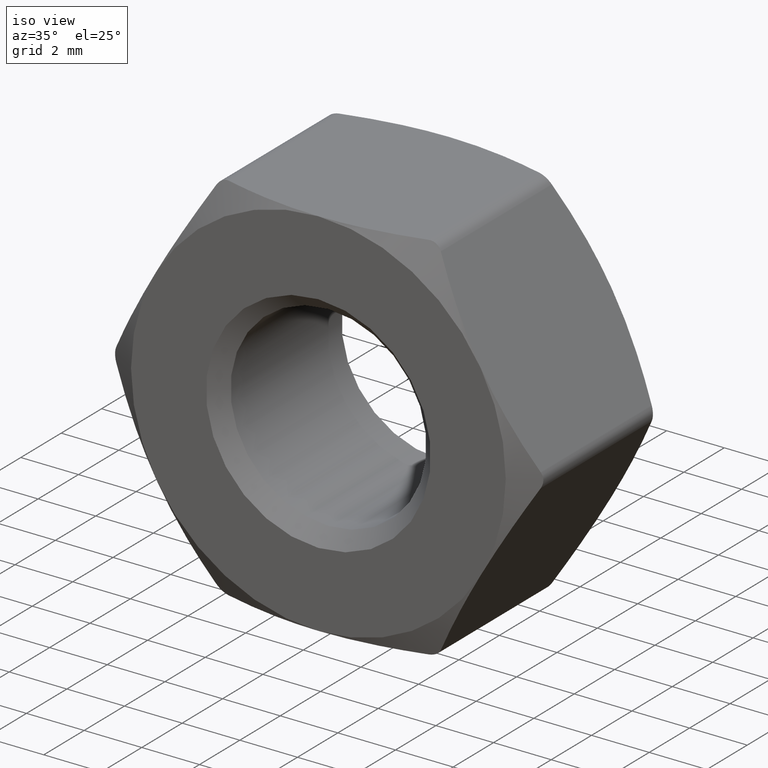
[diagram: clean part render]
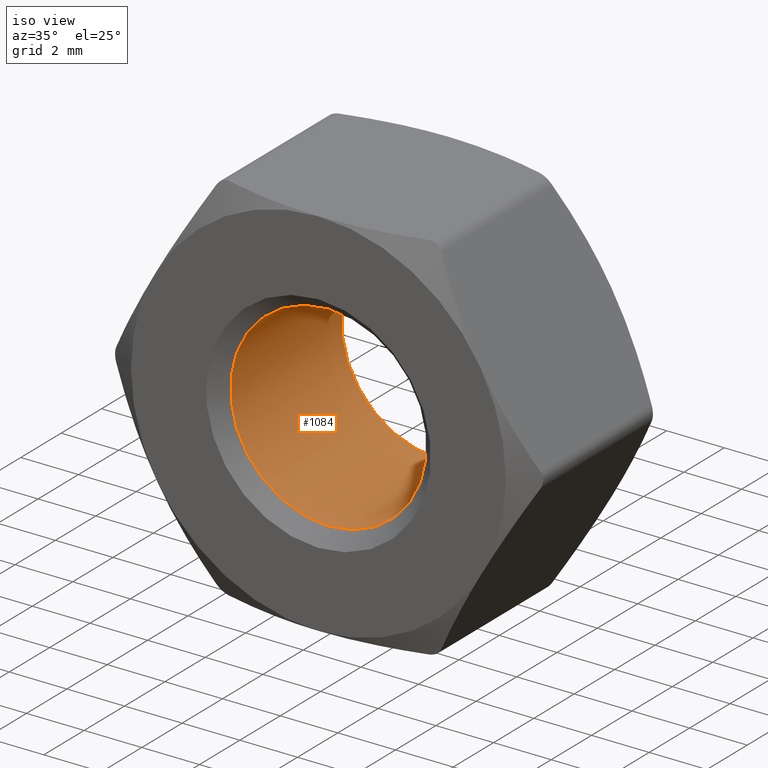
[diagram: same view with one face highlighted and labeled with its STEP entity id]
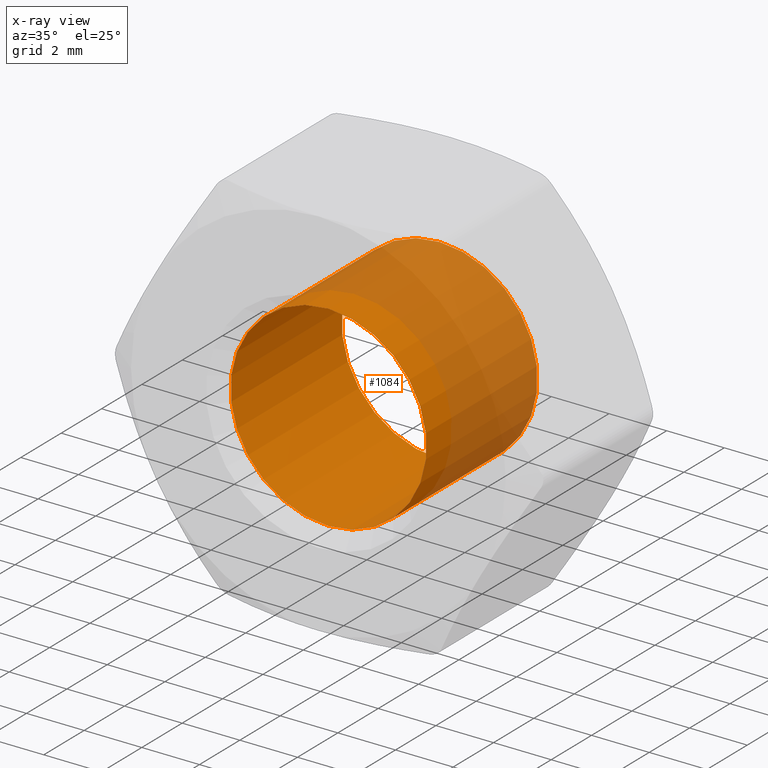
[diagram: x-ray of the same camera — body ghosted, the highlighted face saturated]
A machine part, iso view. The second image highlights one B-rep face of the part: STEP entity #1084.
The next image is the same camera in x-ray: the body ghosted, the highlighted face saturated — about 41% of this face is hidden behind the body in this view.
In plain terms, the highlighted cylindrical surface (bore or boss wall) has radius 3.4 mm, axis along (-0, 1, -0).
Its self-contained STEP definition (entity closure, byte-faithful):
#2 = ORIENTED_EDGE ( 'NONE', *, *, #1339, .T. ) ;
#16 = VERTEX_POINT ( 'NONE', #364 ) ;
#78 = FACE_OUTER_BOUND ( 'NONE', #447, .T. ) ;
#104 = DIRECTION ( 'NONE',  ( -0.0000000000000000000, 1.000000000000000000, -0.0000000000000000000 ) ) ;
#152 = VERTEX_POINT ( 'NONE', #1237 ) ;
#364 = CARTESIAN_POINT ( 'NONE',  ( 0.0000000000000000000, -2.749999999999996900, 3.399999999999998100 ) ) ;
#447 = EDGE_LOOP ( 'NONE', ( #2 ) ) ;
#527 = CARTESIAN_POINT ( 'NONE',  ( 0.0000000000000000000, 2.749999999999995600, 0.0000000000000000000 ) ) ;
#588 = FACE_OUTER_BOUND ( 'NONE', #1618, .T. ) ;
#730 = CYLINDRICAL_SURFACE ( 'NONE', #927, 3.399999999999998100 ) ;
#822 = AXIS2_PLACEMENT_3D ( 'NONE', #1589, #1606, #962 ) ;
#882 = EDGE_CURVE ( 'NONE', #16, #16, #1575, .T. ) ;
#893 = CIRCLE ( 'NONE', #1562, 3.399999999999998100 ) ;
#924 = DIRECTION ( 'NONE',  ( 0.0000000000000000000, 0.0000000000000000000, 1.000000000000000000 ) ) ;
#927 = AXIS2_PLACEMENT_3D ( 'NONE', #1361, #104, #1106 ) ;
#962 = DIRECTION ( 'NONE',  ( 0.0000000000000000000, 0.0000000000000000000, 1.000000000000000000 ) ) ;
#1084 = ADVANCED_FACE ( 'NONE', ( #78, #588 ), #730, .F. ) ;
#1106 = DIRECTION ( 'NONE',  ( 0.0000000000000000000, 0.0000000000000000000, 1.000000000000000000 ) ) ;
#1237 = CARTESIAN_POINT ( 'NONE',  ( 0.0000000000000000000, 2.749999999999995600, 3.399999999999998100 ) ) ;
#1339 = EDGE_CURVE ( 'NONE', #152, #152, #893, .T. ) ;
#1361 = CARTESIAN_POINT ( 'NONE',  ( 0.0000000000000000000, 3.250000000000000000, 0.0000000000000000000 ) ) ;
#1466 = ORIENTED_EDGE ( 'NONE', *, *, #882, .T. ) ;
#1543 = DIRECTION ( 'NONE',  ( 0.0000000000000000000, 1.000000000000000000, 0.0000000000000000000 ) ) ;
#1562 = AXIS2_PLACEMENT_3D ( 'NONE', #527, #1543, #924 ) ;
#1575 = CIRCLE ( 'NONE', #822, 3.399999999999998100 ) ;
#1589 = CARTESIAN_POINT ( 'NONE',  ( 0.0000000000000000000, -2.749999999999996900, 0.0000000000000000000 ) ) ;
#1606 = DIRECTION ( 'NONE',  ( -0.0000000000000000000, -1.000000000000000000, -0.0000000000000000000 ) ) ;
#1618 = EDGE_LOOP ( 'NONE', ( #1466 ) ) ;